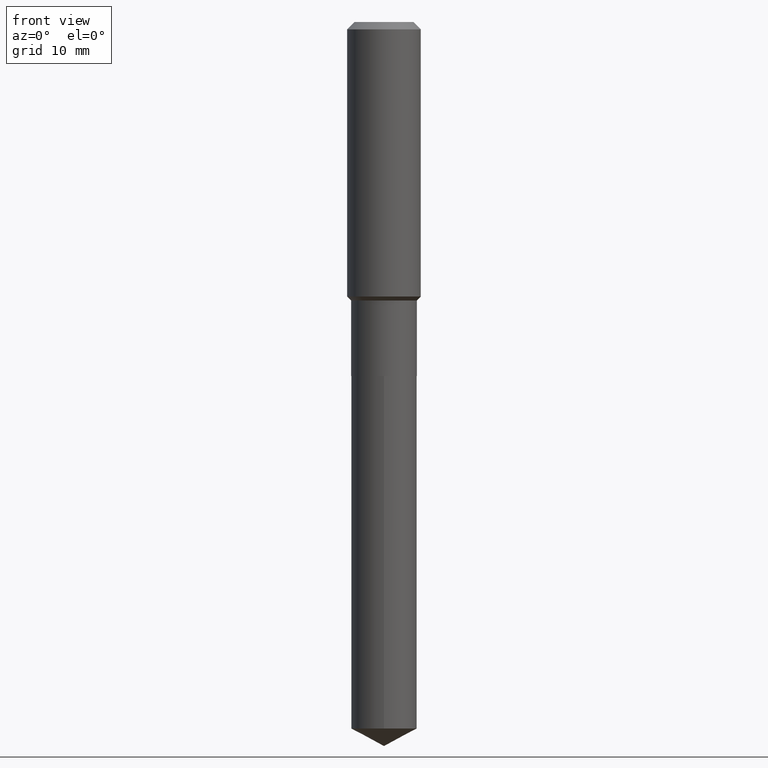
[diagram: clean part render]
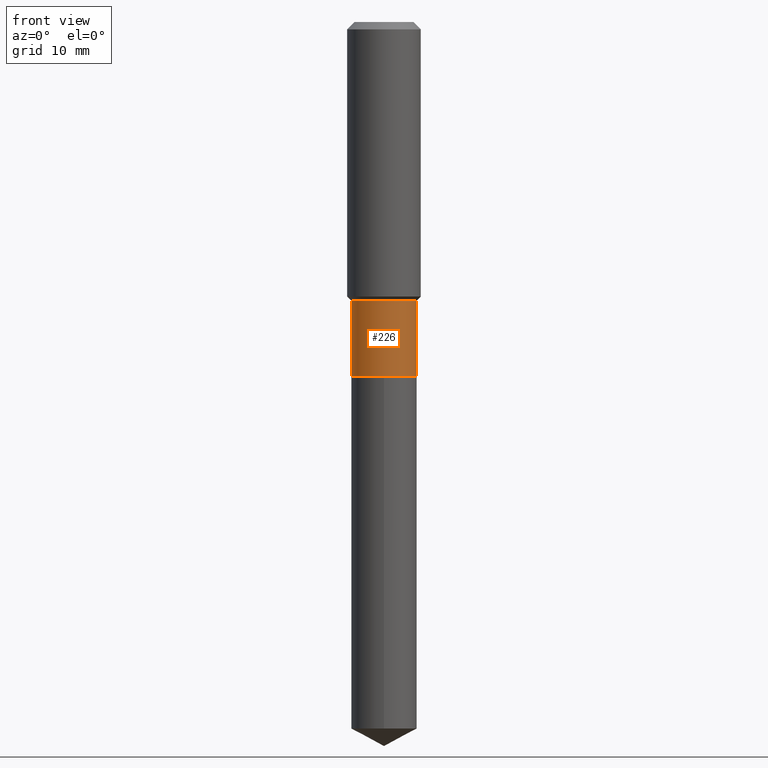
[diagram: same view with one face highlighted and labeled with its STEP entity id]
A machine part, front view. The second image highlights one B-rep face of the part: STEP entity #226.
In plain terms, the highlighted cylindrical surface (edge-blend (fillet) strip) has radius 5.3505 mm, axis along (-0, 0, 1).
Its self-contained STEP definition (entity closure, byte-faithful):
#18 = CARTESIAN_POINT ( 'NONE',  ( -0.2106499999999999484, -5.588155659901859060E-15, -1.787199999999999900 ) ) ;
#20 = CIRCLE ( 'NONE', #387, 0.2106499999999999484 ) ;
#35 = EDGE_CURVE ( 'NONE', #301, #268, #20, .T. ) ;
#51 = DIRECTION ( 'NONE',  ( 1.000000000000000000, -6.982962677686266711E-15, 4.876176775795935793E-29 ) ) ;
#87 = CARTESIAN_POINT ( 'NONE',  ( -0.2106499999999999762, 1.496758272878650872E-15, -1.036173676762195916E-29 ) ) ;
#99 = EDGE_LOOP ( 'NONE', ( #122, #261, #136, #309 ) ) ;
#104 = DIRECTION ( 'NONE',  ( -2.445468806185136597E-29, 3.491481338843145583E-15, 1.000000000000000000 ) ) ;
#122 = ORIENTED_EDGE ( 'NONE', *, *, #251, .F. ) ;
#123 = VERTEX_POINT ( 'NONE', #424 ) ;
#136 = ORIENTED_EDGE ( 'NONE', *, *, #448, .T. ) ;
#137 = CARTESIAN_POINT ( 'NONE',  ( 5.554148752607681363E-29, -7.929852416780550200E-15, -2.271199999999999442 ) ) ;
#139 = CIRCLE ( 'NONE', #427, 0.2106500000000000039 ) ;
#140 = DIRECTION ( 'NONE',  ( 1.000000000000000000, -6.982962677686267499E-15, 0.000000000000000000 ) ) ;
#199 = CARTESIAN_POINT ( 'NONE',  ( 0.2106500000000000039, -9.400813504835161960E-15, -2.271199999999999442 ) ) ;
#207 = LINE ( 'NONE', #280, #420 ) ;
#226 = ADVANCED_FACE ( 'NONE', ( #274 ), #353, .T. ) ;
#251 = EDGE_CURVE ( 'NONE', #123, #301, #391, .T. ) ;
#261 = ORIENTED_EDGE ( 'NONE', *, *, #467, .T. ) ;
#268 = VERTEX_POINT ( 'NONE', #316 ) ;
#274 = FACE_OUTER_BOUND ( 'NONE', #99, .T. ) ;
#279 = DIRECTION ( 'NONE',  ( -2.445468806185136877E-29, 3.491481338843145188E-15, 1.000000000000000000 ) ) ;
#280 = CARTESIAN_POINT ( 'NONE',  ( 0.2106499999999999762, -1.470961088054611958E-15, 1.027166637821413806E-29 ) ) ;
#299 = VERTEX_POINT ( 'NONE', #199 ) ;
#301 = VERTEX_POINT ( 'NONE', #18 ) ;
#309 = ORIENTED_EDGE ( 'NONE', *, *, #35, .F. ) ;
#310 = DIRECTION ( 'NONE',  ( 1.000000000000000000, -6.982962677686265922E-15, 0.000000000000000000 ) ) ;
#316 = CARTESIAN_POINT ( 'NONE',  ( 0.2106499999999999484, -7.710936536835081819E-15, -1.787199999999999900 ) ) ;
#322 = VECTOR ( 'NONE', #279, 39.37007874015748143 ) ;
#333 = CARTESIAN_POINT ( 'NONE',  ( 4.370541850414076546E-29, -6.239975448780469270E-15, -1.787199999999999900 ) ) ;
#353 = CYLINDRICAL_SURFACE ( 'NONE', #361, 0.2106499999999999762 ) ;
#356 = CARTESIAN_POINT ( 'NONE',  ( 0.000000000000000000, 0.000000000000000000, 0.000000000000000000 ) ) ;
#361 = AXIS2_PLACEMENT_3D ( 'NONE', #356, #480, #51 ) ;
#384 = DIRECTION ( 'NONE',  ( -2.445468806185136597E-29, 3.491481338843145583E-15, 1.000000000000000000 ) ) ;
#387 = AXIS2_PLACEMENT_3D ( 'NONE', #333, #384, #140 ) ;
#391 = LINE ( 'NONE', #87, #322 ) ;
#413 = DIRECTION ( 'NONE',  ( -2.445468806185136877E-29, 3.491481338843145188E-15, 1.000000000000000000 ) ) ;
#420 = VECTOR ( 'NONE', #413, 39.37007874015748143 ) ;
#424 = CARTESIAN_POINT ( 'NONE',  ( -0.2106500000000000039, -5.588155659901859060E-15, -2.271199999999999442 ) ) ;
#427 = AXIS2_PLACEMENT_3D ( 'NONE', #137, #104, #310 ) ;
#448 = EDGE_CURVE ( 'NONE', #299, #268, #207, .T. ) ;
#467 = EDGE_CURVE ( 'NONE', #123, #299, #139, .T. ) ;
#480 = DIRECTION ( 'NONE',  ( -2.445468806185136597E-29, 3.491481338843145583E-15, 1.000000000000000000 ) ) ;